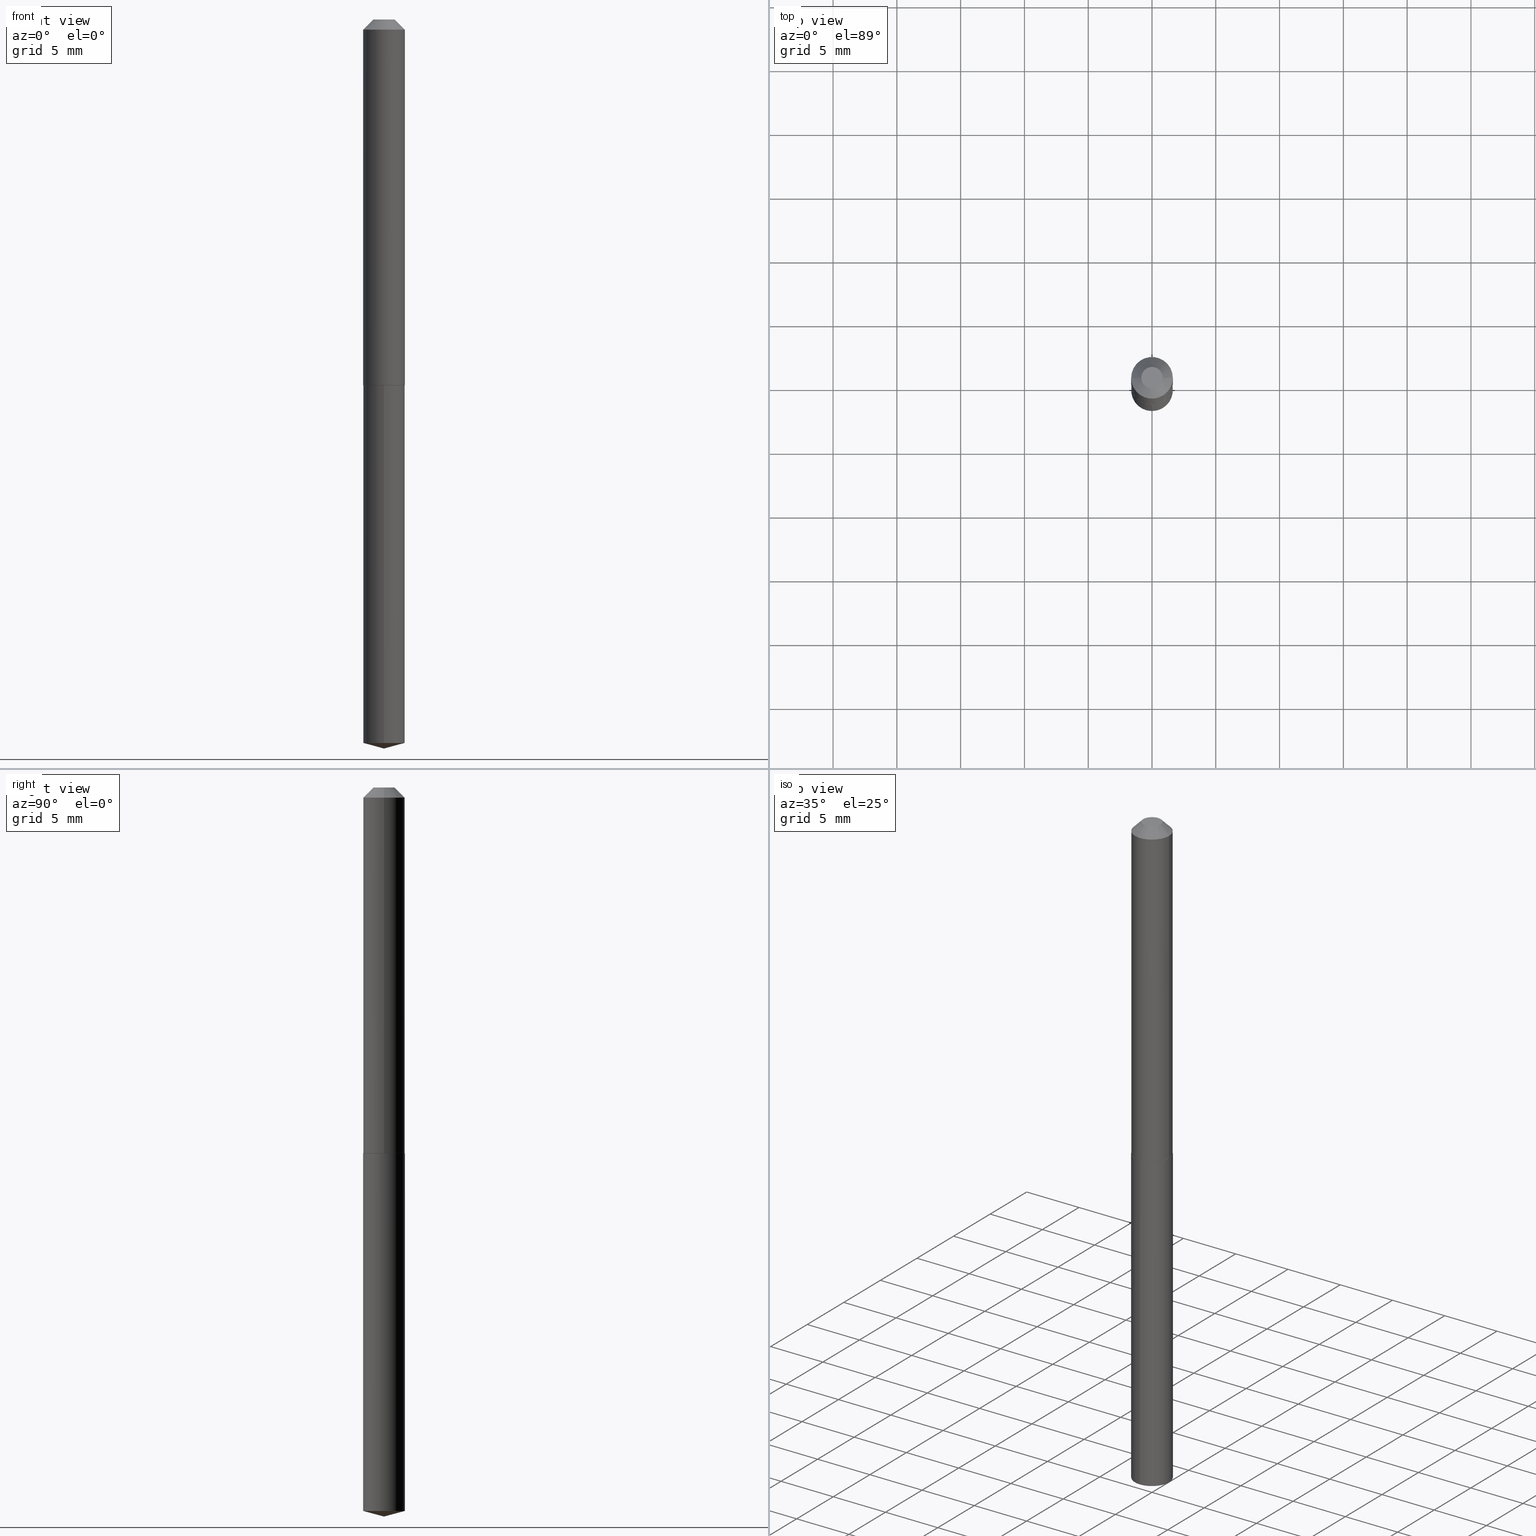
[diagram: canonical four-view strip — front | top / right | iso, engineering-drawing reading convention]
A machine part, canonical four-view strip (front | top / right | iso — engineering-drawing reading convention). The complete STEP part file that produces these views, byte-faithful:
ISO-10303-21;
HEADER;
FILE_DESCRIPTION (( 'STEP AP203' ),
    '1' );
FILE_NAME ('53030.STEP',
    '2024-04-22T19:02:15',
    ( '' ),
    ( '' ),
    'SwSTEP 2.0',
    'SolidWorks 2023',
    '' );
FILE_SCHEMA (( 'CONFIG_CONTROL_DESIGN' ));
ENDSEC;

DATA;
#1 = SECURITY_CLASSIFICATION ( '', '', #155 ) ;
#2 = CARTESIAN_POINT ( 'NONE',  ( 0.06425000000000000155, -5.498957881956698978E-16, -0.03125000000000020123 ) ) ;
#3 = VECTOR ( 'NONE', #317, 39.37007874015748143 ) ;
#4 = CARTESIAN_POINT ( 'NONE',  ( -9.077637644978887552E-28, 1.296035154474369856E-13, 37.12007874015748143 ) ) ;
#5 = EDGE_CURVE ( 'NONE', #357, #291, #185, .T. ) ;
#6 = DATE_AND_TIME ( #151, #146 ) ;
#7 = COORDINATED_UNIVERSAL_TIME_OFFSET ( 5, 0, .BEHIND. ) ;
#8 = CC_DESIGN_APPROVAL ( #21, ( #1 ) ) ;
#9 = EDGE_CURVE ( 'NONE', #107, #27, #356, .T. ) ;
#10 = PERSON_AND_ORGANIZATION ( #389, #299 ) ;
#11 = CARTESIAN_POINT ( 'NONE',  ( 1.123063329715998637E-47, -1.603436792211366566E-33, -4.592425496802578802E-19 ) ) ;
#12 =( GEOMETRIC_REPRESENTATION_CONTEXT ( 3 ) GLOBAL_UNCERTAINTY_ASSIGNED_CONTEXT ( ( #18 ) ) GLOBAL_UNIT_ASSIGNED_CONTEXT ( ( #335, #245, #135 ) ) REPRESENTATION_CONTEXT ( 'NONE', 'WORKASPACE' ) );
#13 = CARTESIAN_POINT ( 'NONE',  ( 0.03300000000000000155, -3.881461110610652654E-16, -4.592425496780956387E-19 ) ) ;
#14 = ORIENTED_EDGE ( 'NONE', *, *, #5, .T. ) ;
#15 = AXIS2_PLACEMENT_3D ( 'NONE', #104, #167, #128 ) ;
#16 = ADVANCED_FACE ( 'NONE', ( #218 ), #244, .T. ) ;
#17 = PRODUCT_DEFINITION_SHAPE ( 'NONE', 'NONE',  #184 ) ;
#18 = UNCERTAINTY_MEASURE_WITH_UNIT (LENGTH_MEASURE( 1.000000000000000082E-05 ), #335, 'distance_accuracy_value', 'NONE');
#19 = EDGE_LOOP ( 'NONE', ( #173, #136, #333, #290 ) ) ;
#20 = ORIENTED_EDGE ( 'NONE', *, *, #161, .F. ) ;
#21 = APPROVAL ( #188, 'UNSPECIFIED' ) ;
#22 = FACE_OUTER_BOUND ( 'NONE', #39, .T. ) ;
#23 = ORIENTED_EDGE ( 'NONE', *, *, #232, .T. ) ;
#24 = CARTESIAN_POINT ( 'NONE',  ( 2.758488813376834359E-29, -3.938390950215068246E-15, -1.128000000000000114 ) ) ;
#25 = EDGE_CURVE ( 'NONE', #324, #143, #223, .T. ) ;
#26 = CIRCLE ( 'NONE', #205, 0.06375000000000011213 ) ;
#27 = VERTEX_POINT ( 'NONE', #311 ) ;
#28 = DIRECTION ( 'NONE',  ( 1.000000000000000000, -6.982962677686269077E-15, 0.000000000000000000 ) ) ;
#29 = PERSON_AND_ORGANIZATION ( #389, #299 ) ;
#30 = ORIENTED_EDGE ( 'NONE', *, *, #65, .F. ) ;
#31 = ORIENTED_EDGE ( 'NONE', *, *, #258, .F. ) ;
#32 = LOCAL_TIME ( 15, 2, 15.00000000000000000, #37 ) ;
#33 = CIRCLE ( 'NONE', #362, 0.06425000000000000155 ) ;
#34 = EDGE_LOOP ( 'NONE', ( #178, #352 ) ) ;
#35 = ADVANCED_BREP_SHAPE_REPRESENTATION ( '53030', ( #268, #272, #345 ), #12 ) ;
#36 = AXIS2_PLACEMENT_3D ( 'NONE', #106, #327, #171 ) ;
#37 = COORDINATED_UNIVERSAL_TIME_OFFSET ( 5, 0, .BEHIND. ) ;
#38 = CC_DESIGN_DATE_AND_TIME_ASSIGNMENT ( #236, #369, ( #184 ) ) ;
#39 = EDGE_LOOP ( 'NONE', ( #199, #304 ) ) ;
#40 = CARTESIAN_POINT ( 'NONE',  ( 0.000000000000000000, 0.000000000000000000, 0.000000000000000000 ) ) ;
#41 = EDGE_CURVE ( 'NONE', #358, #347, #267, .T. ) ;
#42 = PERSON_AND_ORGANIZATION ( #389, #299 ) ;
#43 = CARTESIAN_POINT ( 'NONE',  ( 5.502327471582899959E-29, -7.855800848248360608E-15, -2.250000000000000000 ) ) ;
#44 = AXIS2_PLACEMENT_3D ( 'NONE', #295, #112, #221 ) ;
#45 = CARTESIAN_POINT ( 'NONE',  ( 2.759711547779927161E-29, -3.940136690884490538E-15, -1.128500000000000059 ) ) ;
#46 = EDGE_LOOP ( 'NONE', ( #30, #23, #296 ) ) ;
#47 = PLANE ( 'NONE',  #175 ) ;
#48 = AXIS2_PLACEMENT_3D ( 'NONE', #309, #124, #181 ) ;
#49 = ORIENTED_EDGE ( 'NONE', *, *, #255, .T. ) ;
#50 = APPROVAL_PERSON_ORGANIZATION ( #10, #21, #306 ) ;
#51 = DIRECTION ( 'NONE',  ( -2.445478788454027702E-29, 3.491467043665938443E-15, 1.000000000000000000 ) ) ;
#52 = VERTEX_POINT ( 'NONE', #282 ) ;
#53 = CARTESIAN_POINT ( 'NONE',  ( 7.642090019328601786E-31, -1.091087918388490144E-16, -0.03125000000000020123 ) ) ;
#54 = DIRECTION ( 'NONE',  ( -0.7071067811865474617, 7.493145998870352582E-15, 0.7071067811865474617 ) ) ;
#55 = EDGE_LOOP ( 'NONE', ( #133, #14, #164, #92 ) ) ;
#56 = DIRECTION ( 'NONE',  ( 1.000000000000000000, -6.982962677686265922E-15, 0.000000000000000000 ) ) ;
#57 = DATE_AND_TIME ( #385, #354 ) ;
#58 = APPLICATION_CONTEXT ( 'configuration controlled 3d designs of mechanical parts and assemblies' ) ;
#59 = ORIENTED_EDGE ( 'NONE', *, *, #255, .F. ) ;
#60 = APPROVAL_DATE_TIME ( #57, #382 ) ;
#61 = CIRCLE ( 'NONE', #330, 0.06425000000000014033 ) ;
#62 = CARTESIAN_POINT ( 'NONE',  ( -0.06375000000000011213, -3.484516469663314080E-15, -1.128500000000000059 ) ) ;
#63 = ORIENTED_EDGE ( 'NONE', *, *, #374, .T. ) ;
#64 = DIRECTION ( 'NONE',  ( -2.445478788454027702E-29, 3.491467043665938443E-15, 1.000000000000000000 ) ) ;
#65 = EDGE_CURVE ( 'NONE', #52, #324, #190, .T. ) ;
#66 = AXIS2_PLACEMENT_3D ( 'NONE', #338, #75, #157 ) ;
#67 = CARTESIAN_POINT ( 'NONE',  ( -0.06425000000000000155, 3.395465602024936361E-16, -0.03125000000000020123 ) ) ;
#68 = CYLINDRICAL_SURFACE ( 'NONE', #195, 0.06425000000000007094 ) ;
#69 = DIRECTION ( 'NONE',  ( 2.438088387897960049E-29, -3.491481338843145188E-15, -1.000000000000000000 ) ) ;
#70 = CARTESIAN_POINT ( 'NONE',  ( 5.502304744040674895E-29, -7.855833112463317503E-15, -2.250000000000000000 ) ) ;
#71 = DATE_TIME_ROLE ( 'classification_date' ) ;
#72 = CIRCLE ( 'NONE', #361, 0.06425000000000000155 ) ;
#73 = VECTOR ( 'NONE', #54, 39.37007874015748854 ) ;
#74 = DIRECTION ( 'NONE',  ( -6.982962677686265922E-15, -1.000000000000000000, 4.251903492084456561E-15 ) ) ;
#75 = DIRECTION ( 'NONE',  ( -2.445468806185136597E-29, 3.491481338843145583E-15, 1.000000000000000000 ) ) ;
#76 = AXIS2_PLACEMENT_3D ( 'NONE', #96, #313, #283 ) ;
#77 = CARTESIAN_POINT ( 'NONE',  ( 2.759711547779927161E-29, -3.940136690884490538E-15, -1.128500000000000059 ) ) ;
#78 = DIRECTION ( 'NONE',  ( 1.000000000000000000, -6.982962677686265922E-15, 4.876176775795935793E-29 ) ) ;
#79 = AXIS2_PLACEMENT_3D ( 'NONE', #297, #377, #384 ) ;
#80 = CARTESIAN_POINT ( 'NONE',  ( 4.565237077259187133E-16, 0.06424999999999217448, -2.232784264386301398 ) ) ;
#81 = AXIS2_PLACEMENT_3D ( 'NONE', #373, #160, #280 ) ;
#82 = DIRECTION ( 'NONE',  ( -6.982962677686265922E-15, -1.000000000000000000, 4.251903492084456561E-15 ) ) ;
#83 = ORIENTED_EDGE ( 'NONE', *, *, #258, .T. ) ;
#84 = EDGE_CURVE ( 'NONE', #90, #257, #349, .T. ) ;
#85 = EDGE_LOOP ( 'NONE', ( #31, #387, #105, #260 ) ) ;
#86 = ORIENTED_EDGE ( 'NONE', *, *, #276, .T. ) ;
#87 = DIRECTION ( 'NONE',  ( -2.445468806185136597E-29, 3.491481338843145583E-15, 1.000000000000000000 ) ) ;
#88 = ORIENTED_EDGE ( 'NONE', *, *, #292, .T. ) ;
#89 = CONICAL_SURFACE ( 'NONE', #44, 0.06425000000000014033, 0.7853981633974482790 ) ;
#90 = VERTEX_POINT ( 'NONE', #353 ) ;
#91 = CARTESIAN_POINT ( 'NONE',  ( -4.486553520412877630E-16, -0.06425000000000775924, -2.232784264386300954 ) ) ;
#92 = ORIENTED_EDGE ( 'NONE', *, *, #9, .F. ) ;
#93 = APPLICATION_PROTOCOL_DEFINITION ( 'international standard', 'config_control_design', 1994, #220 ) ;
#94 = CARTESIAN_POINT ( 'NONE',  ( 5.615316648579993184E-48, -8.017183961056832830E-34, -2.296212748401289401E-19 ) ) ;
#95 = PERSON_AND_ORGANIZATION ( #389, #299 ) ;
#96 = CARTESIAN_POINT ( 'NONE',  ( 2.759711547779927161E-29, -3.940136690884490538E-15, -1.128500000000000059 ) ) ;
#97 = AXIS2_PLACEMENT_3D ( 'NONE', #24, #141, #262 ) ;
#98 = DIRECTION ( 'NONE',  ( -2.445478788454027702E-29, 3.491467043665938048E-15, 1.000000000000000000 ) ) ;
#99 = CYLINDRICAL_SURFACE ( 'NONE', #81, 0.06425000000000000155 ) ;
#100 = CARTESIAN_POINT ( 'NONE',  ( 5.460215292760186058E-29, -7.795708806828143374E-15, -2.232784264386301398 ) ) ;
#101 = CC_DESIGN_APPROVAL ( #203, ( #228 ) ) ;
#102 = EDGE_CURVE ( 'NONE', #257, #90, #61, .T. ) ;
#103 = FACE_OUTER_BOUND ( 'NONE', #34, .T. ) ;
#104 = CARTESIAN_POINT ( 'NONE',  ( 2.759711547779927161E-29, -3.940136690884490538E-15, -1.128500000000000059 ) ) ;
#105 = ORIENTED_EDGE ( 'NONE', *, *, #249, .T. ) ;
#106 = CARTESIAN_POINT ( 'NONE',  ( 2.759711547779927161E-29, -3.940136690884490538E-15, -1.128500000000000059 ) ) ;
#107 = VERTEX_POINT ( 'NONE', #110 ) ;
#108 = DIRECTION ( 'NONE',  ( -2.445468806185136597E-29, 3.491481338843145583E-15, 1.000000000000000000 ) ) ;
#109 = EDGE_LOOP ( 'NONE', ( #376, #202, #240 ) ) ;
#110 = CARTESIAN_POINT ( 'NONE',  ( -0.03300000000000000155, 2.849921642830702198E-16, -4.592425496820599729E-19 ) ) ;
#111 = COORDINATED_UNIVERSAL_TIME_OFFSET ( 5, 0, .BEHIND. ) ;
#112 = DIRECTION ( 'NONE',  ( -2.445468806185136597E-29, 3.491481338843145583E-15, 1.000000000000000000 ) ) ;
#113 = DESIGN_CONTEXT ( 'detailed design', #220, 'design' ) ;
#114 = EDGE_CURVE ( 'NONE', #27, #291, #301, .T. ) ;
#115 = CONICAL_SURFACE ( 'NONE', #97, 0.06425000000000014033, 0.7853981633974482790 ) ;
#116 = ORIENTED_EDGE ( 'NONE', *, *, #388, .T. ) ;
#117 = DIRECTION ( 'NONE',  ( 1.000000000000000000, -6.982962677686265922E-15, 4.876176775795935793E-29 ) ) ;
#118 = PERSON_AND_ORGANIZATION_ROLE ( 'classification_officer' ) ;
#119 = AXIS2_PLACEMENT_3D ( 'NONE', #239, #332, #355 ) ;
#120 = CARTESIAN_POINT ( 'NONE',  ( 0.000000000000000000, 0.000000000000000000, 0.000000000000000000 ) ) ;
#121 = PRODUCT_RELATED_PRODUCT_CATEGORY ( 'detail', '', ( #372 ) ) ;
#122 = DIRECTION ( 'NONE',  ( -2.445478788454027702E-29, 3.491467043665938048E-15, 1.000000000000000000 ) ) ;
#123 = DIRECTION ( 'NONE',  ( -2.445468806185136597E-29, 3.491481338843145583E-15, 1.000000000000000000 ) ) ;
#124 = DIRECTION ( 'NONE',  ( -2.445468806185136597E-29, 3.491481338843145583E-15, 1.000000000000000000 ) ) ;
#125 = CONICAL_SURFACE ( 'NONE', #119, 0.06425000000000000155, 0.7853981633974450594 ) ;
#126 = PERSON_AND_ORGANIZATION ( #389, #299 ) ;
#127 = ADVANCED_FACE ( 'NONE', ( #234 ), #183, .T. ) ;
#128 = DIRECTION ( 'NONE',  ( -6.982962677686265922E-15, -1.000000000000000000, 4.251903492084456561E-15 ) ) ;
#129 = CIRCLE ( 'NONE', #76, 0.06375000000000011213 ) ;
#130 = DIRECTION ( 'NONE',  ( -2.445468806185136597E-29, 3.491481338843145583E-15, 1.000000000000000000 ) ) ;
#131 = MECHANICAL_CONTEXT ( 'NONE', #58, 'mechanical' ) ;
#132 = FACE_OUTER_BOUND ( 'NONE', #19, .T. ) ;
#133 = ORIENTED_EDGE ( 'NONE', *, *, #323, .F. ) ;
#134 = CIRCLE ( 'NONE', #15, 0.06425000000000000155 ) ;
#135 =( NAMED_UNIT ( * ) SI_UNIT ( $, .STERADIAN. ) SOLID_ANGLE_UNIT ( ) );
#136 = ORIENTED_EDGE ( 'NONE', *, *, #25, .T. ) ;
#137 = LINE ( 'NONE', #363, #266 ) ;
#138 = PLANE ( 'NONE',  #214 ) ;
#139 = EDGE_LOOP ( 'NONE', ( #63, #49, #383, #271 ) ) ;
#140 = DIRECTION ( 'NONE',  ( -0.7071067811865452413, 2.468850131082233000E-15, -0.7071067811865497932 ) ) ;
#141 = DIRECTION ( 'NONE',  ( -2.445468806185136597E-29, 3.491481338843145583E-15, 1.000000000000000000 ) ) ;
#142 = CONICAL_SURFACE ( 'NONE', #248, 146.9311341562627149, 1.308996938995760306 ) ;
#143 = VERTEX_POINT ( 'NONE', #91 ) ;
#144 = PERSON_AND_ORGANIZATION_ROLE ( 'creator' ) ;
#145 = DIRECTION ( 'NONE',  ( 0.7071067811865452413, -7.319954787623248157E-15, -0.7071067811865497932 ) ) ;
#146 = LOCAL_TIME ( 15, 2, 15.00000000000000000, #152 ) ;
#147 = AXIS2_PLACEMENT_3D ( 'NONE', #53, #331, #56 ) ;
#148 = CARTESIAN_POINT ( 'NONE',  ( 7.642090019328601786E-31, -1.091087918388490144E-16, -0.03125000000000020123 ) ) ;
#149 = ORIENTED_EDGE ( 'NONE', *, *, #9, .T. ) ;
#150 = PERSON_AND_ORGANIZATION ( #389, #299 ) ;
#151 = CALENDAR_DATE ( 2024, 22, 4 ) ;
#152 = COORDINATED_UNIVERSAL_TIME_OFFSET ( 5, 0, .BEHIND. ) ;
#153 = CC_DESIGN_PERSON_AND_ORGANIZATION_ASSIGNMENT ( #150, #360, ( #372 ) ) ;
#154 = CARTESIAN_POINT ( 'NONE',  ( 2.758488813376834359E-29, -3.938390950215068246E-15, -1.128000000000000114 ) ) ;
#155 = SECURITY_CLASSIFICATION_LEVEL ( 'unclassified' ) ;
#156 = PLANE ( 'NONE',  #275 ) ;
#157 = DIRECTION ( 'NONE',  ( 1.000000000000000000, -6.982962677686265922E-15, 4.876176775795935793E-29 ) ) ;
#158 = AXIS2_PLACEMENT_3D ( 'NONE', #154, #123, #169 ) ;
#159 = DIRECTION ( 'NONE',  ( -2.438088387897960049E-29, 3.491481338843145188E-15, 1.000000000000000000 ) ) ;
#160 = DIRECTION ( 'NONE',  ( -2.445478788454027702E-29, 3.491467043665938048E-15, 1.000000000000000000 ) ) ;
#161 = EDGE_CURVE ( 'NONE', #291, #27, #33, .T. ) ;
#162 = DIRECTION ( 'NONE',  ( 1.000000000000000000, -6.982962677686271444E-15, 0.000000000000000000 ) ) ;
#163 = CC_DESIGN_DATE_AND_TIME_ASSIGNMENT ( #337, #71, ( #1 ) ) ;
#164 = ORIENTED_EDGE ( 'NONE', *, *, #161, .T. ) ;
#165 = DIRECTION ( 'NONE',  ( -2.445478788454027702E-29, 3.491467043665938048E-15, 1.000000000000000000 ) ) ;
#166 = CIRCLE ( 'NONE', #48, 0.03300000000000000155 ) ;
#167 = DIRECTION ( 'NONE',  ( -2.445478788454027702E-29, 3.491467043665938048E-15, 1.000000000000000000 ) ) ;
#168 = ADVANCED_FACE ( 'NONE', ( #233 ), #125, .T. ) ;
#169 = DIRECTION ( 'NONE',  ( 1.000000000000000000, -6.982962677686269077E-15, 0.000000000000000000 ) ) ;
#170 = ORIENTED_EDGE ( 'NONE', *, *, #251, .F. ) ;
#171 = DIRECTION ( 'NONE',  ( -6.982962677686265922E-15, -1.000000000000000000, 4.251903492084456561E-15 ) ) ;
#172 = APPLICATION_PROTOCOL_DEFINITION ( 'international standard', 'config_control_design', 1994, #58 ) ;
#173 = ORIENTED_EDGE ( 'NONE', *, *, #292, .F. ) ;
#174 = CONICAL_SURFACE ( 'NONE', #211, 146.9311341562627149, 1.308996938995760306 ) ;
#175 = AXIS2_PLACEMENT_3D ( 'NONE', #94, #69, #213 ) ;
#176 = FACE_OUTER_BOUND ( 'NONE', #298, .T. ) ;
#177 = DIRECTION ( 'NONE',  ( 0.000000000000000000, 0.000000000000000000, 1.000000000000000000 ) ) ;
#178 = ORIENTED_EDGE ( 'NONE', *, *, #251, .T. ) ;
#179 = VERTEX_POINT ( 'NONE', #62 ) ;
#180 = ADVANCED_FACE ( 'NONE', ( #176 ), #89, .T. ) ;
#181 = DIRECTION ( 'NONE',  ( 1.000000000000000000, -6.982962677686268288E-15, 4.876144659811843154E-29 ) ) ;
#182 = ADVANCED_FACE ( 'NONE', ( #288 ), #174, .T. ) ;
#183 = CONICAL_SURFACE ( 'NONE', #79, 0.06425000000000000155, 0.7853981633974450594 ) ;
#184 = PRODUCT_DEFINITION ( 'UNKNOWN', '', #228, #113 ) ;
#185 = LINE ( 'NONE', #2, #261 ) ;
#186 = DATE_AND_TIME ( #192, #32 ) ;
#187 = FACE_OUTER_BOUND ( 'NONE', #85, .T. ) ;
#188 = APPROVAL_STATUS ( 'not_yet_approved' ) ;
#189 = ADVANCED_FACE ( 'NONE', ( #103 ), #156, .F. ) ;
#190 = LINE ( 'NONE', #43, #312 ) ;
#191 = ADVANCED_FACE ( 'NONE', ( #325 ), #115, .T. ) ;
#192 = CALENDAR_DATE ( 2024, 22, 4 ) ;
#193 = CARTESIAN_POINT ( 'NONE',  ( -9.077637644978887552E-28, 1.296035154474369856E-13, 37.12007874015748143 ) ) ;
#194 = LINE ( 'NONE', #289, #73 ) ;
#195 = AXIS2_PLACEMENT_3D ( 'NONE', #40, #273, #117 ) ;
#196 = CARTESIAN_POINT ( 'NONE',  ( -4.486553520413150773E-16, -0.06425000000000394285, -1.128499999999999837 ) ) ;
#197 = ADVANCED_FACE ( 'NONE', ( #187 ), #68, .T. ) ;
#198 = DIRECTION ( 'NONE',  ( -2.445468806185136597E-29, 3.491481338843145583E-15, 1.000000000000000000 ) ) ;
#199 = ORIENTED_EDGE ( 'NONE', *, *, #374, .F. ) ;
#200 = LINE ( 'NONE', #321, #344 ) ;
#201 = VERTEX_POINT ( 'NONE', #303 ) ;
#202 = ORIENTED_EDGE ( 'NONE', *, *, #65, .T. ) ;
#203 = APPROVAL ( #216, 'UNSPECIFIED' ) ;
#204 = ADVANCED_FACE ( 'NONE', ( #305 ), #142, .T. ) ;
#205 = AXIS2_PLACEMENT_3D ( 'NONE', #45, #198, #162 ) ;
#206 = CC_DESIGN_PERSON_AND_ORGANIZATION_ASSIGNMENT ( #215, #219, ( #228 ) ) ;
#207 = ORIENTED_EDGE ( 'NONE', *, *, #102, .F. ) ;
#208 = EDGE_CURVE ( 'NONE', #179, #201, #26, .T. ) ;
#209 = EDGE_LOOP ( 'NONE', ( #86, #88, #170, #226 ) ) ;
#210 = EDGE_CURVE ( 'NONE', #201, #90, #364, .T. ) ;
#211 = AXIS2_PLACEMENT_3D ( 'NONE', #193, #316, #279 ) ;
#212 = LENGTH_MEASURE_WITH_UNIT ( LENGTH_MEASURE( 0.02539999999999999897 ), #300 );
#213 = DIRECTION ( 'NONE',  ( -1.000000000000000000, 6.982962677686265922E-15, -4.876176775795935793E-29 ) ) ;
#214 = AXIS2_PLACEMENT_3D ( 'NONE', #259, #159, #78 ) ;
#215 = PERSON_AND_ORGANIZATION ( #389, #299 ) ;
#216 = APPROVAL_STATUS ( 'not_yet_approved' ) ;
#217 = VECTOR ( 'NONE', #140, 39.37007874015748143 ) ;
#218 = FACE_OUTER_BOUND ( 'NONE', #359, .T. ) ;
#219 = PERSON_AND_ORGANIZATION_ROLE ( 'design_supplier' ) ;
#220 = APPLICATION_CONTEXT ( 'configuration controlled 3d designs of mechanical parts and assemblies' ) ;
#221 = DIRECTION ( 'NONE',  ( 1.000000000000000000, -6.982962677686269077E-15, 0.000000000000000000 ) ) ;
#222 = DIRECTION ( 'NONE',  ( 1.000000000000000000, -6.982962677686268288E-15, 4.876144659811843154E-29 ) ) ;
#223 = CIRCLE ( 'NONE', #342, 0.06425000000000000155 ) ;
#224 = LINE ( 'NONE', #343, #3 ) ;
#225 = ADVANCED_FACE ( 'NONE', ( #375 ), #47, .F. ) ;
#226 = ORIENTED_EDGE ( 'NONE', *, *, #386, .F. ) ;
#227 = CARTESIAN_POINT ( 'NONE',  ( -0.06425000000000014033, -3.481867242489202879E-15, -1.128000000000000114 ) ) ;
#228 = PRODUCT_DEFINITION_FORMATION_WITH_SPECIFIED_SOURCE ( 'ANY', '', #372, .NOT_KNOWN. ) ;
#229 = DIRECTION ( 'NONE',  ( 2.445478788454027141E-29, -3.491467043665938443E-15, -1.000000000000000000 ) ) ;
#230 = ORIENTED_EDGE ( 'NONE', *, *, #5, .F. ) ;
#231 = AXIS2_PLACEMENT_3D ( 'NONE', #77, #165, #74 ) ;
#232 = EDGE_CURVE ( 'NONE', #52, #143, #336, .T. ) ;
#233 = FACE_OUTER_BOUND ( 'NONE', #55, .T. ) ;
#234 = FACE_OUTER_BOUND ( 'NONE', #326, .T. ) ;
#235 = LOCAL_TIME ( 15, 2, 15.00000000000000000, #111 ) ;
#236 = DATE_AND_TIME ( #264, #235 ) ;
#237 = CC_DESIGN_SECURITY_CLASSIFICATION ( #1, ( #228 ) ) ;
#238 = ORIENTED_EDGE ( 'NONE', *, *, #84, .T. ) ;
#239 = CARTESIAN_POINT ( 'NONE',  ( 7.642090019328601786E-31, -1.091087918388490144E-16, -0.03125000000000020123 ) ) ;
#240 = ORIENTED_EDGE ( 'NONE', *, *, #276, .F. ) ;
#241 = APPROVAL_ROLE ( '' ) ;
#242 = CALENDAR_DATE ( 2024, 22, 4 ) ;
#243 = APPROVAL_ROLE ( '' ) ;
#244 = CYLINDRICAL_SURFACE ( 'NONE', #66, 0.06425000000000007094 ) ;
#245 =( NAMED_UNIT ( * ) PLANE_ANGLE_UNIT ( ) SI_UNIT ( $, .RADIAN. ) );
#246 = APPROVAL_DATE_TIME ( #6, #21 ) ;
#247 = LOCAL_TIME ( 15, 2, 15.00000000000000000, #7 ) ;
#248 = AXIS2_PLACEMENT_3D ( 'NONE', #4, #122, #314 ) ;
#249 = EDGE_CURVE ( 'NONE', #90, #291, #224, .T. ) ;
#250 = DIRECTION ( 'NONE',  ( -2.445468806185136877E-29, 3.491481338843145188E-15, 1.000000000000000000 ) ) ;
#251 = EDGE_CURVE ( 'NONE', #347, #358, #134, .T. ) ;
#252 = CC_DESIGN_PERSON_AND_ORGANIZATION_ASSIGNMENT ( #29, #144, ( #184 ) ) ;
#253 = DIRECTION ( 'NONE',  ( 0.7071067811865474617, -2.468850131082256666E-15, 0.7071067811865474617 ) ) ;
#254 = CYLINDRICAL_SURFACE ( 'NONE', #36, 0.06425000000000000155 ) ;
#255 = EDGE_CURVE ( 'NONE', #179, #257, #194, .T. ) ;
#256 = CARTESIAN_POINT ( 'NONE',  ( -0.06425000000000007094, 4.565237077258648735E-16, -3.160415795488780682E-30 ) ) ;
#257 = VERTEX_POINT ( 'NONE', #227 ) ;
#258 = EDGE_CURVE ( 'NONE', #257, #27, #293, .T. ) ;
#259 = CARTESIAN_POINT ( 'NONE',  ( 2.759711547779927161E-29, -3.940136690884490538E-15, -1.128500000000000059 ) ) ;
#260 = ORIENTED_EDGE ( 'NONE', *, *, #114, .F. ) ;
#261 = VECTOR ( 'NONE', #145, 39.37007874015748143 ) ;
#262 = DIRECTION ( 'NONE',  ( 1.000000000000000000, -6.982962677686269077E-15, 0.000000000000000000 ) ) ;
#263 = ORIENTED_EDGE ( 'NONE', *, *, #249, .F. ) ;
#264 = CALENDAR_DATE ( 2024, 22, 4 ) ;
#265 = DIRECTION ( 'NONE',  ( 1.000000000000000000, -6.982962677686265922E-15, 0.000000000000000000 ) ) ;
#266 = VECTOR ( 'NONE', #64, 39.37007874015748143 ) ;
#267 = CIRCLE ( 'NONE', #231, 0.06425000000000000155 ) ;
#268 = MANIFOLD_SOLID_BREP ( 'Body-Move/Copy2[1]', #278 ) ;
#269 = ORIENTED_EDGE ( 'NONE', *, *, #114, .T. ) ;
#270 = SHAPE_DEFINITION_REPRESENTATION ( #17, #35 ) ;
#271 = ORIENTED_EDGE ( 'NONE', *, *, #210, .F. ) ;
#272 = MANIFOLD_SOLID_BREP ( 'Body-Move/Copy2[2]', #334 ) ;
#273 = DIRECTION ( 'NONE',  ( -2.445468806185136597E-29, 3.491481338843145583E-15, 1.000000000000000000 ) ) ;
#274 = APPROVAL_STATUS ( 'not_yet_approved' ) ;
#275 = AXIS2_PLACEMENT_3D ( 'NONE', #378, #229, #348 ) ;
#276 = EDGE_CURVE ( 'NONE', #143, #324, #72, .T. ) ;
#277 = PERSON_AND_ORGANIZATION_ROLE ( 'creator' ) ;
#278 = CLOSED_SHELL ( 'NONE', ( #310, #182, #204, #367, #189 ) ) ;
#279 = DIRECTION ( 'NONE',  ( -6.982962677686266711E-15, -1.000000000000000000, 3.510303681827456234E-15 ) ) ;
#280 = DIRECTION ( 'NONE',  ( -6.982962677686265922E-15, -1.000000000000000000, 4.251903492084456561E-15 ) ) ;
#281 = AXIS2_PLACEMENT_3D ( 'NONE', #11, #130, #222 ) ;
#282 = CARTESIAN_POINT ( 'NONE',  ( 5.502327274021562399E-29, -7.855800848248362186E-15, -2.250000000000000000 ) ) ;
#283 = DIRECTION ( 'NONE',  ( 1.000000000000000000, -6.982962677686271444E-15, 0.000000000000000000 ) ) ;
#284 = CC_DESIGN_APPROVAL ( #382, ( #184 ) ) ;
#285 = DIRECTION ( 'NONE',  ( 1.000000000000000000, 0.000000000000000000, 0.000000000000000000 ) ) ;
#286 = CARTESIAN_POINT ( 'NONE',  ( 0.06425000000000014033, -4.387046302256412018E-15, -1.128000000000000114 ) ) ;
#287 = CARTESIAN_POINT ( 'NONE',  ( 4.565237077259191077E-16, 0.06424999999999606026, -1.128500000000000503 ) ) ;
#288 = FACE_OUTER_BOUND ( 'NONE', #109, .T. ) ;
#289 = CARTESIAN_POINT ( 'NONE',  ( -0.06425000000000014033, -3.481867242489202879E-15, -1.128000000000000114 ) ) ;
#290 = ORIENTED_EDGE ( 'NONE', *, *, #41, .F. ) ;
#291 = VERTEX_POINT ( 'NONE', #371 ) ;
#292 = EDGE_CURVE ( 'NONE', #324, #358, #200, .T. ) ;
#293 = LINE ( 'NONE', #256, #302 ) ;
#294 = ORIENTED_EDGE ( 'NONE', *, *, #323, .T. ) ;
#295 = CARTESIAN_POINT ( 'NONE',  ( 2.758488813376834359E-29, -3.938390950215068246E-15, -1.128000000000000114 ) ) ;
#296 = ORIENTED_EDGE ( 'NONE', *, *, #25, .F. ) ;
#297 = CARTESIAN_POINT ( 'NONE',  ( 7.642090019328601786E-31, -1.091087918388490144E-16, -0.03125000000000020123 ) ) ;
#298 = EDGE_LOOP ( 'NONE', ( #59, #315, #328, #207 ) ) ;
#299 = ORGANIZATION ( 'UNSPECIFIED', 'UNSPECIFIED', '' ) ;
#300 =( LENGTH_UNIT ( ) NAMED_UNIT ( * ) SI_UNIT ( $, .METRE. ) );
#301 = CIRCLE ( 'NONE', #147, 0.06425000000000000155 ) ;
#302 = VECTOR ( 'NONE', #250, 39.37007874015748143 ) ;
#303 = CARTESIAN_POINT ( 'NONE',  ( 0.06375000000000011213, -4.385300561586990514E-15, -1.128500000000000059 ) ) ;
#304 = ORIENTED_EDGE ( 'NONE', *, *, #208, .F. ) ;
#305 = FACE_OUTER_BOUND ( 'NONE', #46, .T. ) ;
#306 = APPROVAL_ROLE ( '' ) ;
#307 = VECTOR ( 'NONE', #253, 39.37007874015748854 ) ;
#308 = DIRECTION ( 'NONE',  ( 6.863315791527716348E-15, 0.9659258262890725311, 0.2588190451025047523 ) ) ;
#309 = CARTESIAN_POINT ( 'NONE',  ( 1.123063329715998637E-47, -1.603436792211366566E-33, -4.592425496802578802E-19 ) ) ;
#310 = ADVANCED_FACE ( 'NONE', ( #379 ), #99, .T. ) ;
#311 = CARTESIAN_POINT ( 'NONE',  ( -0.06425000000000000155, -1.567226163301092912E-15, -0.03125000000000020123 ) ) ;
#312 = VECTOR ( 'NONE', #308, 39.37007874015748854 ) ;
#313 = DIRECTION ( 'NONE',  ( -2.445468806185136597E-29, 3.491481338843145583E-15, 1.000000000000000000 ) ) ;
#314 = DIRECTION ( 'NONE',  ( -6.982962677686266711E-15, -1.000000000000000000, 3.510303681827456234E-15 ) ) ;
#315 = ORIENTED_EDGE ( 'NONE', *, *, #208, .T. ) ;
#316 = DIRECTION ( 'NONE',  ( -2.445478788454027702E-29, 3.491467043665938048E-15, 1.000000000000000000 ) ) ;
#317 = DIRECTION ( 'NONE',  ( -2.445468806185136877E-29, 3.491481338843145188E-15, 1.000000000000000000 ) ) ;
#318 = DIMENSIONAL_EXPONENTS ( 1.000000000000000000, 0.000000000000000000, 0.000000000000000000, 0.000000000000000000, 0.000000000000000000, 0.000000000000000000, 0.000000000000000000 ) ;
#319 = CC_DESIGN_PERSON_AND_ORGANIZATION_ASSIGNMENT ( #42, #118, ( #1 ) ) ;
#320 = ORIENTED_EDGE ( 'NONE', *, *, #388, .F. ) ;
#321 = CARTESIAN_POINT ( 'NONE',  ( 4.565237077258918920E-16, 0.06424999999999606026, -1.128500000000000503 ) ) ;
#322 = APPROVAL_PERSON_ORGANIZATION ( #126, #203, #243 ) ;
#323 = EDGE_CURVE ( 'NONE', #357, #107, #351, .T. ) ;
#324 = VERTEX_POINT ( 'NONE', #80 ) ;
#325 = FACE_OUTER_BOUND ( 'NONE', #139, .T. ) ;
#326 = EDGE_LOOP ( 'NONE', ( #230, #320, #149, #269 ) ) ;
#327 = DIRECTION ( 'NONE',  ( -2.445478788454027702E-29, 3.491467043665938048E-15, 1.000000000000000000 ) ) ;
#328 = ORIENTED_EDGE ( 'NONE', *, *, #210, .T. ) ;
#329 = COORDINATED_UNIVERSAL_TIME_OFFSET ( 5, 0, .BEHIND. ) ;
#330 = AXIS2_PLACEMENT_3D ( 'NONE', #381, #87, #28 ) ;
#331 = DIRECTION ( 'NONE',  ( -2.445468806185136597E-29, 3.491481338843145583E-15, 1.000000000000000000 ) ) ;
#332 = DIRECTION ( 'NONE',  ( 2.445468806185136597E-29, -3.491481338843145583E-15, -1.000000000000000000 ) ) ;
#333 = ORIENTED_EDGE ( 'NONE', *, *, #386, .T. ) ;
#334 = CLOSED_SHELL ( 'NONE', ( #168, #16, #191, #368, #180, #197, #127, #225 ) ) ;
#335 =( CONVERSION_BASED_UNIT ( 'INCH', #212 ) LENGTH_UNIT ( ) NAMED_UNIT ( #318 ) );
#336 = LINE ( 'NONE', #70, #370 ) ;
#337 = DATE_AND_TIME ( #242, #247 ) ;
#338 = CARTESIAN_POINT ( 'NONE',  ( 0.000000000000000000, 0.000000000000000000, 0.000000000000000000 ) ) ;
#339 = DIRECTION ( 'NONE',  ( -6.982962677686265922E-15, -1.000000000000000000, 4.251903492084456561E-15 ) ) ;
#340 = APPROVAL_PERSON_ORGANIZATION ( #390, #382, #241 ) ;
#341 = CARTESIAN_POINT ( 'NONE',  ( 5.460215292760186058E-29, -7.795708806828143374E-15, -2.232784264386301398 ) ) ;
#342 = AXIS2_PLACEMENT_3D ( 'NONE', #341, #98, #339 ) ;
#343 = CARTESIAN_POINT ( 'NONE',  ( 0.06425000000000007094, -4.486553520413430819E-16, 3.132943578448892334E-30 ) ) ;
#344 = VECTOR ( 'NONE', #51, 39.37007874015748143 ) ;
#345 = AXIS2_PLACEMENT_3D ( 'NONE', #120, #177, #285 ) ;
#346 = DIRECTION ( 'NONE',  ( -2.445478788454027702E-29, 3.491467043665938048E-15, 1.000000000000000000 ) ) ;
#347 = VERTEX_POINT ( 'NONE', #196 ) ;
#348 = DIRECTION ( 'NONE',  ( 6.982962677686265922E-15, 1.000000000000000000, -3.491467043665938443E-15 ) ) ;
#349 = CIRCLE ( 'NONE', #158, 0.06425000000000014033 ) ;
#350 = EDGE_LOOP ( 'NONE', ( #116, #294 ) ) ;
#351 = CIRCLE ( 'NONE', #281, 0.03300000000000000155 ) ;
#352 = ORIENTED_EDGE ( 'NONE', *, *, #41, .T. ) ;
#353 = CARTESIAN_POINT ( 'NONE',  ( 0.06425000000000014033, -4.387046302256412018E-15, -1.128000000000000114 ) ) ;
#354 = LOCAL_TIME ( 15, 2, 15.00000000000000000, #329 ) ;
#355 = DIRECTION ( 'NONE',  ( -1.000000000000000000, 6.982962677686265922E-15, 0.000000000000000000 ) ) ;
#356 = LINE ( 'NONE', #67, #217 ) ;
#357 = VERTEX_POINT ( 'NONE', #13 ) ;
#358 = VERTEX_POINT ( 'NONE', #287 ) ;
#359 = EDGE_LOOP ( 'NONE', ( #238, #83, #20, #263 ) ) ;
#360 = PERSON_AND_ORGANIZATION_ROLE ( 'design_owner' ) ;
#361 = AXIS2_PLACEMENT_3D ( 'NONE', #100, #346, #82 ) ;
#362 = AXIS2_PLACEMENT_3D ( 'NONE', #148, #108, #265 ) ;
#363 = CARTESIAN_POINT ( 'NONE',  ( -4.486553520413150773E-16, -0.06425000000000394285, -1.128499999999999837 ) ) ;
#364 = LINE ( 'NONE', #286, #307 ) ;
#365 = APPROVAL_DATE_TIME ( #186, #203 ) ;
#366 = CC_DESIGN_PERSON_AND_ORGANIZATION_ASSIGNMENT ( #95, #277, ( #228 ) ) ;
#367 = ADVANCED_FACE ( 'NONE', ( #132 ), #254, .T. ) ;
#368 = ADVANCED_FACE ( 'NONE', ( #22 ), #138, .F. ) ;
#369 = DATE_TIME_ROLE ( 'creation_date' ) ;
#370 = VECTOR ( 'NONE', #380, 39.37007874015748143 ) ;
#371 = CARTESIAN_POINT ( 'NONE',  ( 0.06425000000000000155, -5.577641438801915909E-16, -0.03125000000000020123 ) ) ;
#372 = PRODUCT ( '53030', '53030', '', ( #131 ) ) ;
#373 = CARTESIAN_POINT ( 'NONE',  ( 2.759711547779927161E-29, -3.940136690884490538E-15, -1.128500000000000059 ) ) ;
#374 = EDGE_CURVE ( 'NONE', #201, #179, #129, .T. ) ;
#375 = FACE_OUTER_BOUND ( 'NONE', #350, .T. ) ;
#376 = ORIENTED_EDGE ( 'NONE', *, *, #232, .F. ) ;
#377 = DIRECTION ( 'NONE',  ( 2.445468806185136597E-29, -3.491481338843145583E-15, -1.000000000000000000 ) ) ;
#378 = CARTESIAN_POINT ( 'NONE',  ( 2.759711547779927161E-29, -3.940136690884490538E-15, -1.128500000000000059 ) ) ;
#379 = FACE_OUTER_BOUND ( 'NONE', #209, .T. ) ;
#380 = DIRECTION ( 'NONE',  ( -6.745023994389860432E-15, -0.9659258262890707547, 0.2588190451025114691 ) ) ;
#381 = CARTESIAN_POINT ( 'NONE',  ( 2.758488813376834359E-29, -3.938390950215068246E-15, -1.128000000000000114 ) ) ;
#382 = APPROVAL ( #274, 'UNSPECIFIED' ) ;
#383 = ORIENTED_EDGE ( 'NONE', *, *, #84, .F. ) ;
#384 = DIRECTION ( 'NONE',  ( -1.000000000000000000, 6.982962677686265922E-15, 0.000000000000000000 ) ) ;
#385 = CALENDAR_DATE ( 2024, 22, 4 ) ;
#386 = EDGE_CURVE ( 'NONE', #143, #347, #137, .T. ) ;
#387 = ORIENTED_EDGE ( 'NONE', *, *, #102, .T. ) ;
#388 = EDGE_CURVE ( 'NONE', #107, #357, #166, .T. ) ;
#389 = PERSON ( 'UNSPECIFIED', 'UNSPECIFIED', 'UNSPECIFIED', ('UNSPECIFIED'), ('UNSPECIFIED'), ('UNSPECIFIED') ) ;
#390 = PERSON_AND_ORGANIZATION ( #389, #299 ) ;
ENDSEC;
END-ISO-10303-21;
